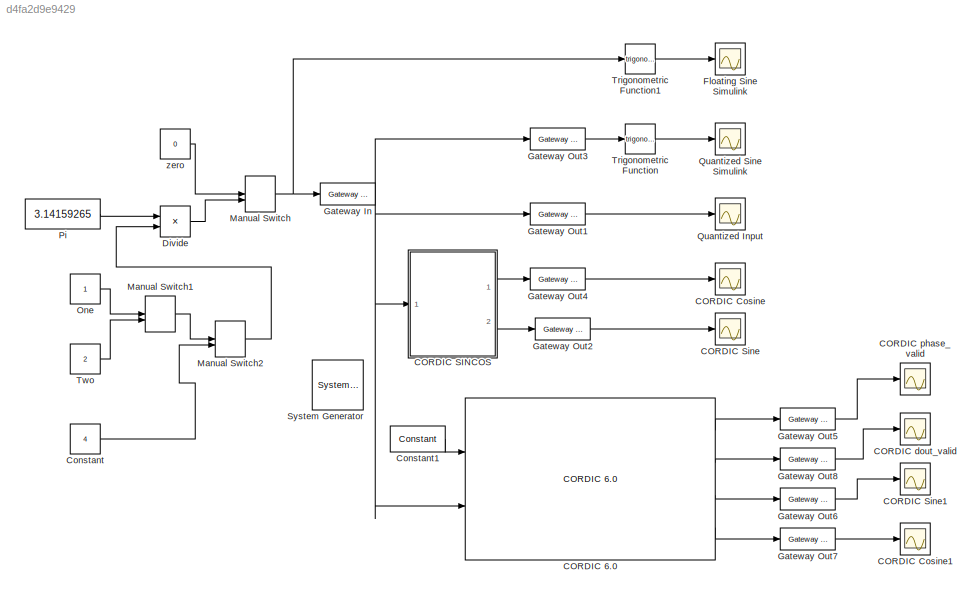
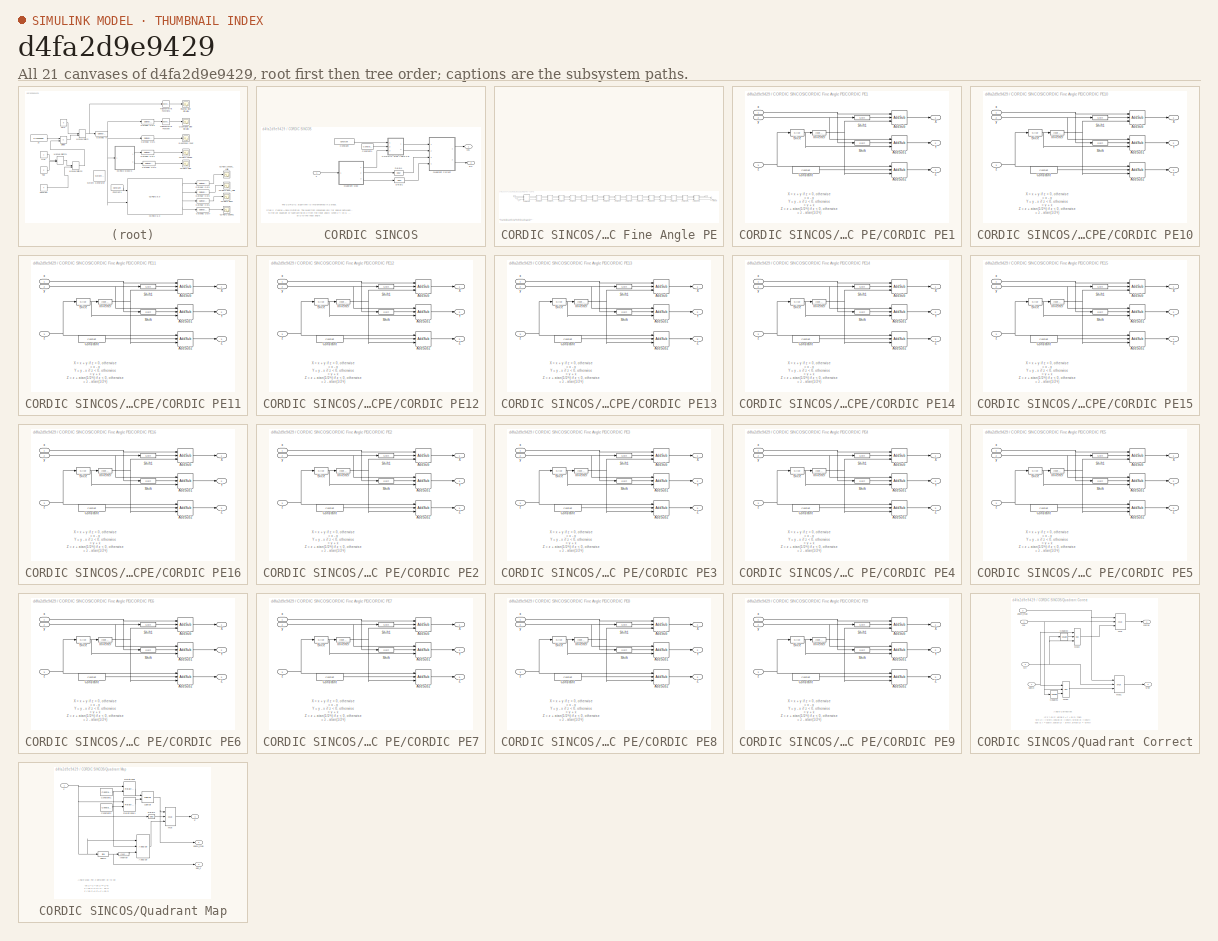
[diagram: thumbnail index - all 21 canvases of the model, root first then tree order]
MODEL slx_d4fa2d9e9429
KIND model
CONFIG AbsTol = auto
CONFIG EnableMultiTasking = on
CONFIG FixedStep = auto
CONFIG MaxStep = auto
CONFIG MinStep = auto
CONFIG RelTol = 1e-3
CONFIG SampleTimeConstraint = Unconstrained
CONFIG SolverName = ode45
CONFIG StartTime = 0.0
CONFIG StopTime = 30
BLOCK [Reference]  System Generator  REF=xbsIndex_r4/ System Generator
  AttributesFormatString = System\nGenerator
  Ports = []
  SourceBlock = xbsIndex_r4/ System Generator
  SourceType = Xilinx System Generator Block
  Tag = genX
  UserDataPersistent = on
BLOCK [Reference] CORDIC 6.0  REF=hdlDSPIP/CORDIC 6.0 
  Ports = [2, 4]
  SourceBlock = hdlDSPIP/CORDIC 6.0
  SourceType = CORDIC 6.0 Block
BLOCK [Scope] CORDIC Cosine
  Floating = off
  NumInputPorts = 1
  Ports = [1]
  ScopeSpecificationString = Simulink.scopes.TimeScopeBlockCfg('CurrentConfiguration', extmgr.ConfigurationSet(extmgr.Configuration('Core','General UI',true),extmgr.Configuration('Core','Source UI',true),extmgr.Configuration('Sources','WiredSimulink',true,'DataLoggingVariableName','ScopeData4','DataLoggingSaveFormat','StructureWithTime','DataLoggingLimitDataPoints',true,'DataLoggingDecimation','1','DataLoggingDecimateData',tr...<+1713ch>
BLOCK [Scope] CORDIC Cosine1
  Floating = off
  NumInputPorts = 1
  Ports = [1]
  ScopeSpecificationString = Simulink.scopes.TimeScopeBlockCfg('CurrentConfiguration', extmgr.ConfigurationSet(extmgr.Configuration('Core','General UI',true),extmgr.Configuration('Core','Source UI',true),extmgr.Configuration('Sources','WiredSimulink',true,'DataLoggingVariableName','ScopeData1','DataLoggingSaveFormat','StructureWithTime','DataLoggingLimitDataPoints',true,'DataLoggingDecimation','1','DataLoggingDecimateData',tr...<+1738ch>
BLOCK [SubSystem] CORDIC SINCOS
  CopyFcn = set_param(gcb, 'MaskSelfModifiable', 'on', 'LinkStatus', 'none');
  Ports = [1, 2]
  RequestExecContextInheritance = off
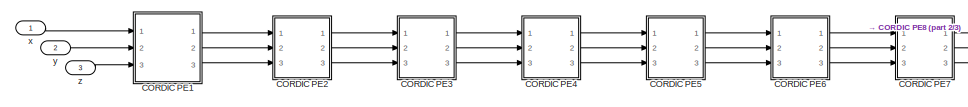
[diagram: CORDIC SINCOS/CORDIC Fine Angle PE - part 1/3, top left region]
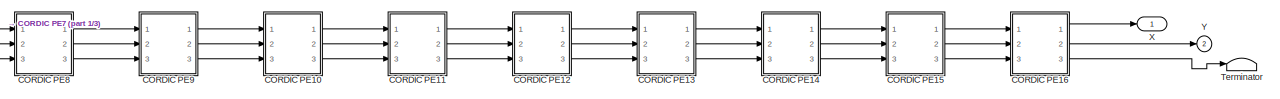
[diagram: CORDIC SINCOS/CORDIC Fine Angle PE - part 2/3, top right region]
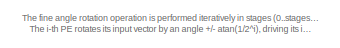
[diagram: CORDIC SINCOS/CORDIC Fine Angle PE - part 3/3, bottom left region]
BLOCK [SubSystem] CORDIC SINCOS/CORDIC Fine Angle PE
  Ports = [3, 2]
  RequestExecContextInheritance = off
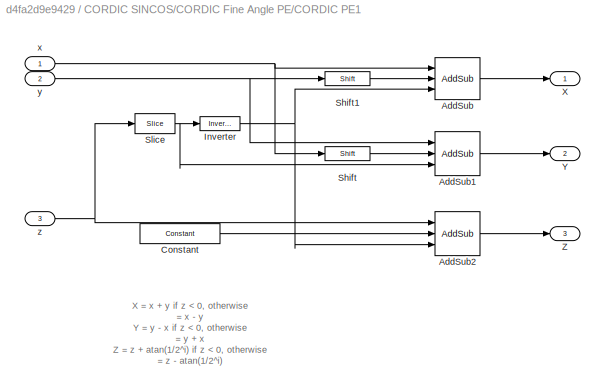
BLOCK [SubSystem] CORDIC SINCOS/CORDIC Fine Angle PE/CORDIC PE1
  Ports = [3, 3]
  RequestExecContextInheritance = off
BLOCK [Reference] CORDIC SINCOS/CORDIC Fine Angle PE/CORDIC PE1/AddSub  REF=hdlBasic/AddSub
  Ports = [3, 1]
  SourceBlock = hdlBasic/AddSub
  SourceType = Adder/Subtracter Block
BLOCK [Reference] CORDIC SINCOS/CORDIC Fine Angle PE/CORDIC PE1/AddSub1  REF=hdlBasic/AddSub
  Ports = [3, 1]
  SourceBlock = hdlBasic/AddSub
  SourceType = Adder/Subtracter Block
BLOCK [Reference] CORDIC SINCOS/CORDIC Fine Angle PE/CORDIC PE1/AddSub2  REF=hdlBasic/AddSub
  Ports = [3, 1]
  SourceBlock = hdlBasic/AddSub
  SourceType = Adder/Subtracter Block
BLOCK [Reference] CORDIC SINCOS/CORDIC Fine Angle PE/CORDIC PE1/Constant  REF=hdlBasic/Constant
  Ports = [0, 1]
  SourceBlock = hdlBasic/Constant
  SourceType = Constant Block Block
BLOCK [Reference] CORDIC SINCOS/CORDIC Fine Angle PE/CORDIC PE1/Inverter  REF=hdlBasic/Inverter
  Ports = [1, 1]
  SourceBlock = hdlBasic/Inverter
  SourceType = Inverter Block
BLOCK [Reference] CORDIC SINCOS/CORDIC Fine Angle PE/CORDIC PE1/Shift  REF=hdlBasic/Shift
  Ports = [1, 1]
  SourceBlock = hdlBasic/Shift
  SourceType = Binary Shift Operator Block
BLOCK [Reference] CORDIC SINCOS/CORDIC Fine Angle PE/CORDIC PE1/Shift1  REF=hdlBasic/Shift
  Ports = [1, 1]
  SourceBlock = hdlBasic/Shift
  SourceType = Binary Shift Operator Block
BLOCK [Reference] CORDIC SINCOS/CORDIC Fine Angle PE/CORDIC PE1/Slice  REF=hdlBasic/Slice
  Ports = [1, 1]
  SourceBlock = hdlBasic/Slice
  SourceType = Bit Slice Extractor Block
BLOCK [Outport] CORDIC SINCOS/CORDIC Fine Angle PE/CORDIC PE1/X
  VectorParamsAs1DForOutWhenUnconnected = off
BLOCK [Outport] CORDIC SINCOS/CORDIC Fine Angle PE/CORDIC PE1/Y
  Port = 2
  VectorParamsAs1DForOutWhenUnconnected = off
BLOCK [Outport] CORDIC SINCOS/CORDIC Fine Angle PE/CORDIC PE1/Z
  Port = 3
  VectorParamsAs1DForOutWhenUnconnected = off
BLOCK [Inport] CORDIC SINCOS/CORDIC Fine Angle PE/CORDIC PE1/x
  NameLocation = top
BLOCK [Inport] CORDIC SINCOS/CORDIC Fine Angle PE/CORDIC PE1/y
  Port = 2
BLOCK [Inport] CORDIC SINCOS/CORDIC Fine Angle PE/CORDIC PE1/z
  Port = 3
BLOCK [SubSystem] CORDIC SINCOS/CORDIC Fine Angle PE/CORDIC PE10
  Ports = [3, 3]
  RequestExecContextInheritance = off
BLOCK [Reference] CORDIC SINCOS/CORDIC Fine Angle PE/CORDIC PE10/AddSub  REF=hdlBasic/AddSub
  Ports = [3, 1]
  SourceBlock = hdlBasic/AddSub
  SourceType = Adder/Subtracter Block
BLOCK [Reference] CORDIC SINCOS/CORDIC Fine Angle PE/CORDIC PE10/AddSub1  REF=hdlBasic/AddSub
  Ports = [3, 1]
  SourceBlock = hdlBasic/AddSub
  SourceType = Adder/Subtracter Block
BLOCK [Reference] CORDIC SINCOS/CORDIC Fine Angle PE/CORDIC PE10/AddSub2  REF=hdlBasic/AddSub
  Ports = [3, 1]
  SourceBlock = hdlBasic/AddSub
  SourceType = Adder/Subtracter Block
BLOCK [Reference] CORDIC SINCOS/CORDIC Fine Angle PE/CORDIC PE10/Constant  REF=hdlBasic/Constant
  Ports = [0, 1]
  SourceBlock = hdlBasic/Constant
  SourceType = Constant Block Block
BLOCK [Reference] CORDIC SINCOS/CORDIC Fine Angle PE/CORDIC PE10/Inverter  REF=hdlBasic/Inverter
  Ports = [1, 1]
  SourceBlock = hdlBasic/Inverter
  SourceType = Inverter Block
BLOCK [Reference] CORDIC SINCOS/CORDIC Fine Angle PE/CORDIC PE10/Shift  REF=hdlBasic/Shift
  Ports = [1, 1]
  SourceBlock = hdlBasic/Shift
  SourceType = Binary Shift Operator Block
BLOCK [Reference] CORDIC SINCOS/CORDIC Fine Angle PE/CORDIC PE10/Shift1  REF=hdlBasic/Shift
  Ports = [1, 1]
  SourceBlock = hdlBasic/Shift
  SourceType = Binary Shift Operator Block
BLOCK [Reference] CORDIC SINCOS/CORDIC Fine Angle PE/CORDIC PE10/Slice  REF=hdlBasic/Slice
  Ports = [1, 1]
  SourceBlock = hdlBasic/Slice
  SourceType = Bit Slice Extractor Block
BLOCK [Outport] CORDIC SINCOS/CORDIC Fine Angle PE/CORDIC PE10/X
  VectorParamsAs1DForOutWhenUnconnected = off
BLOCK [Outport] CORDIC SINCOS/CORDIC Fine Angle PE/CORDIC PE10/Y
  Port = 2
  VectorParamsAs1DForOutWhenUnconnected = off
BLOCK [Outport] CORDIC SINCOS/CORDIC Fine Angle PE/CORDIC PE10/Z
  Port = 3
  VectorParamsAs1DForOutWhenUnconnected = off
BLOCK [Inport] CORDIC SINCOS/CORDIC Fine Angle PE/CORDIC PE10/x
  NameLocation = top
BLOCK [Inport] CORDIC SINCOS/CORDIC Fine Angle PE/CORDIC PE10/y
  Port = 2
BLOCK [Inport] CORDIC SINCOS/CORDIC Fine Angle PE/CORDIC PE10/z
  Port = 3
BLOCK [SubSystem] CORDIC SINCOS/CORDIC Fine Angle PE/CORDIC PE11
  Ports = [3, 3]
  RequestExecContextInheritance = off
BLOCK [Reference] CORDIC SINCOS/CORDIC Fine Angle PE/CORDIC PE11/AddSub  REF=hdlBasic/AddSub
  Ports = [3, 1]
  SourceBlock = hdlBasic/AddSub
  SourceType = Adder/Subtracter Block
BLOCK [Reference] CORDIC SINCOS/CORDIC Fine Angle PE/CORDIC PE11/AddSub1  REF=hdlBasic/AddSub
  Ports = [3, 1]
  SourceBlock = hdlBasic/AddSub
  SourceType = Adder/Subtracter Block
BLOCK [Reference] CORDIC SINCOS/CORDIC Fine Angle PE/CORDIC PE11/AddSub2  REF=hdlBasic/AddSub
  Ports = [3, 1]
  SourceBlock = hdlBasic/AddSub
  SourceType = Adder/Subtracter Block
BLOCK [Reference] CORDIC SINCOS/CORDIC Fine Angle PE/CORDIC PE11/Constant  REF=hdlBasic/Constant
  Ports = [0, 1]
  SourceBlock = hdlBasic/Constant
  SourceType = Constant Block Block
BLOCK [Reference] CORDIC SINCOS/CORDIC Fine Angle PE/CORDIC PE11/Inverter  REF=hdlBasic/Inverter
  Ports = [1, 1]
  SourceBlock = hdlBasic/Inverter
  SourceType = Inverter Block
BLOCK [Reference] CORDIC SINCOS/CORDIC Fine Angle PE/CORDIC PE11/Shift  REF=hdlBasic/Shift
  Ports = [1, 1]
  SourceBlock = hdlBasic/Shift
  SourceType = Binary Shift Operator Block
BLOCK [Reference] CORDIC SINCOS/CORDIC Fine Angle PE/CORDIC PE11/Shift1  REF=hdlBasic/Shift
  Ports = [1, 1]
  SourceBlock = hdlBasic/Shift
  SourceType = Binary Shift Operator Block
BLOCK [Reference] CORDIC SINCOS/CORDIC Fine Angle PE/CORDIC PE11/Slice  REF=hdlBasic/Slice
  Ports = [1, 1]
  SourceBlock = hdlBasic/Slice
  SourceType = Bit Slice Extractor Block
BLOCK [Outport] CORDIC SINCOS/CORDIC Fine Angle PE/CORDIC PE11/X
  VectorParamsAs1DForOutWhenUnconnected = off
BLOCK [Outport] CORDIC SINCOS/CORDIC Fine Angle PE/CORDIC PE11/Y
  Port = 2
  VectorParamsAs1DForOutWhenUnconnected = off
BLOCK [Outport] CORDIC SINCOS/CORDIC Fine Angle PE/CORDIC PE11/Z
  Port = 3
  VectorParamsAs1DForOutWhenUnconnected = off
BLOCK [Inport] CORDIC SINCOS/CORDIC Fine Angle PE/CORDIC PE11/x
  NameLocation = top
BLOCK [Inport] CORDIC SINCOS/CORDIC Fine Angle PE/CORDIC PE11/y
  Port = 2
BLOCK [Inport] CORDIC SINCOS/CORDIC Fine Angle PE/CORDIC PE11/z
  Port = 3
BLOCK [SubSystem] CORDIC SINCOS/CORDIC Fine Angle PE/CORDIC PE12
  Ports = [3, 3]
  RequestExecContextInheritance = off
BLOCK [Reference] CORDIC SINCOS/CORDIC Fine Angle PE/CORDIC PE12/AddSub  REF=hdlBasic/AddSub
  Ports = [3, 1]
  SourceBlock = hdlBasic/AddSub
  SourceType = Adder/Subtracter Block
BLOCK [Reference] CORDIC SINCOS/CORDIC Fine Angle PE/CORDIC PE12/AddSub1  REF=hdlBasic/AddSub
  Ports = [3, 1]
  SourceBlock = hdlBasic/AddSub
  SourceType = Adder/Subtracter Block
BLOCK [Reference] CORDIC SINCOS/CORDIC Fine Angle PE/CORDIC PE12/AddSub2  REF=hdlBasic/AddSub
  Ports = [3, 1]
  SourceBlock = hdlBasic/AddSub
  SourceType = Adder/Subtracter Block
BLOCK [Reference] CORDIC SINCOS/CORDIC Fine Angle PE/CORDIC PE12/Constant  REF=hdlBasic/Constant
  Ports = [0, 1]
  SourceBlock = hdlBasic/Constant
  SourceType = Constant Block Block
BLOCK [Reference] CORDIC SINCOS/CORDIC Fine Angle PE/CORDIC PE12/Inverter  REF=hdlBasic/Inverter
  Ports = [1, 1]
  SourceBlock = hdlBasic/Inverter
  SourceType = Inverter Block
BLOCK [Reference] CORDIC SINCOS/CORDIC Fine Angle PE/CORDIC PE12/Shift  REF=hdlBasic/Shift
  Ports = [1, 1]
  SourceBlock = hdlBasic/Shift
  SourceType = Binary Shift Operator Block
BLOCK [Reference] CORDIC SINCOS/CORDIC Fine Angle PE/CORDIC PE12/Shift1  REF=hdlBasic/Shift
  Ports = [1, 1]
  SourceBlock = hdlBasic/Shift
  SourceType = Binary Shift Operator Block
BLOCK [Reference] CORDIC SINCOS/CORDIC Fine Angle PE/CORDIC PE12/Slice  REF=hdlBasic/Slice
  Ports = [1, 1]
  SourceBlock = hdlBasic/Slice
  SourceType = Bit Slice Extractor Block
BLOCK [Outport] CORDIC SINCOS/CORDIC Fine Angle PE/CORDIC PE12/X
  VectorParamsAs1DForOutWhenUnconnected = off
BLOCK [Outport] CORDIC SINCOS/CORDIC Fine Angle PE/CORDIC PE12/Y
  Port = 2
  VectorParamsAs1DForOutWhenUnconnected = off
BLOCK [Outport] CORDIC SINCOS/CORDIC Fine Angle PE/CORDIC PE12/Z
  Port = 3
  VectorParamsAs1DForOutWhenUnconnected = off
BLOCK [Inport] CORDIC SINCOS/CORDIC Fine Angle PE/CORDIC PE12/x
  NameLocation = top
BLOCK [Inport] CORDIC SINCOS/CORDIC Fine Angle PE/CORDIC PE12/y
  Port = 2
BLOCK [Inport] CORDIC SINCOS/CORDIC Fine Angle PE/CORDIC PE12/z
  Port = 3
BLOCK [SubSystem] CORDIC SINCOS/CORDIC Fine Angle PE/CORDIC PE13
  Ports = [3, 3]
  RequestExecContextInheritance = off
BLOCK [Reference] CORDIC SINCOS/CORDIC Fine Angle PE/CORDIC PE13/AddSub  REF=hdlBasic/AddSub
  Ports = [3, 1]
  SourceBlock = hdlBasic/AddSub
  SourceType = Adder/Subtracter Block
BLOCK [Reference] CORDIC SINCOS/CORDIC Fine Angle PE/CORDIC PE13/AddSub1  REF=hdlBasic/AddSub
  Ports = [3, 1]
  SourceBlock = hdlBasic/AddSub
  SourceType = Adder/Subtracter Block
BLOCK [Reference] CORDIC SINCOS/CORDIC Fine Angle PE/CORDIC PE13/AddSub2  REF=hdlBasic/AddSub
  Ports = [3, 1]
  SourceBlock = hdlBasic/AddSub
  SourceType = Adder/Subtracter Block
BLOCK [Reference] CORDIC SINCOS/CORDIC Fine Angle PE/CORDIC PE13/Constant  REF=hdlBasic/Constant
  Ports = [0, 1]
  SourceBlock = hdlBasic/Constant
  SourceType = Constant Block Block
BLOCK [Reference] CORDIC SINCOS/CORDIC Fine Angle PE/CORDIC PE13/Inverter  REF=hdlBasic/Inverter
  Ports = [1, 1]
  SourceBlock = hdlBasic/Inverter
  SourceType = Inverter Block
BLOCK [Reference] CORDIC SINCOS/CORDIC Fine Angle PE/CORDIC PE13/Shift  REF=hdlBasic/Shift
  Ports = [1, 1]
  SourceBlock = hdlBasic/Shift
  SourceType = Binary Shift Operator Block
BLOCK [Reference] CORDIC SINCOS/CORDIC Fine Angle PE/CORDIC PE13/Shift1  REF=hdlBasic/Shift
  Ports = [1, 1]
  SourceBlock = hdlBasic/Shift
  SourceType = Binary Shift Operator Block
BLOCK [Reference] CORDIC SINCOS/CORDIC Fine Angle PE/CORDIC PE13/Slice  REF=hdlBasic/Slice
  Ports = [1, 1]
  SourceBlock = hdlBasic/Slice
  SourceType = Bit Slice Extractor Block
BLOCK [Outport] CORDIC SINCOS/CORDIC Fine Angle PE/CORDIC PE13/X
  VectorParamsAs1DForOutWhenUnconnected = off
BLOCK [Outport] CORDIC SINCOS/CORDIC Fine Angle PE/CORDIC PE13/Y
  Port = 2
  VectorParamsAs1DForOutWhenUnconnected = off
BLOCK [Outport] CORDIC SINCOS/CORDIC Fine Angle PE/CORDIC PE13/Z
  Port = 3
  VectorParamsAs1DForOutWhenUnconnected = off
BLOCK [Inport] CORDIC SINCOS/CORDIC Fine Angle PE/CORDIC PE13/x
  NameLocation = top
BLOCK [Inport] CORDIC SINCOS/CORDIC Fine Angle PE/CORDIC PE13/y
  Port = 2
BLOCK [Inport] CORDIC SINCOS/CORDIC Fine Angle PE/CORDIC PE13/z
  Port = 3
BLOCK [SubSystem] CORDIC SINCOS/CORDIC Fine Angle PE/CORDIC PE14
  Ports = [3, 3]
  RequestExecContextInheritance = off
BLOCK [Reference] CORDIC SINCOS/CORDIC Fine Angle PE/CORDIC PE14/AddSub  REF=hdlBasic/AddSub
  Ports = [3, 1]
  SourceBlock = hdlBasic/AddSub
  SourceType = Adder/Subtracter Block
BLOCK [Reference] CORDIC SINCOS/CORDIC Fine Angle PE/CORDIC PE14/AddSub1  REF=hdlBasic/AddSub
  Ports = [3, 1]
  SourceBlock = hdlBasic/AddSub
  SourceType = Adder/Subtracter Block
BLOCK [Reference] CORDIC SINCOS/CORDIC Fine Angle PE/CORDIC PE14/AddSub2  REF=hdlBasic/AddSub
  Ports = [3, 1]
  SourceBlock = hdlBasic/AddSub
  SourceType = Adder/Subtracter Block
BLOCK [Reference] CORDIC SINCOS/CORDIC Fine Angle PE/CORDIC PE14/Constant  REF=hdlBasic/Constant
  Ports = [0, 1]
  SourceBlock = hdlBasic/Constant
  SourceType = Constant Block Block
BLOCK [Reference] CORDIC SINCOS/CORDIC Fine Angle PE/CORDIC PE14/Inverter  REF=hdlBasic/Inverter
  Ports = [1, 1]
  SourceBlock = hdlBasic/Inverter
  SourceType = Inverter Block
BLOCK [Reference] CORDIC SINCOS/CORDIC Fine Angle PE/CORDIC PE14/Shift  REF=hdlBasic/Shift
  Ports = [1, 1]
  SourceBlock = hdlBasic/Shift
  SourceType = Binary Shift Operator Block
BLOCK [Reference] CORDIC SINCOS/CORDIC Fine Angle PE/CORDIC PE14/Shift1  REF=hdlBasic/Shift
  Ports = [1, 1]
  SourceBlock = hdlBasic/Shift
  SourceType = Binary Shift Operator Block
BLOCK [Reference] CORDIC SINCOS/CORDIC Fine Angle PE/CORDIC PE14/Slice  REF=hdlBasic/Slice
  Ports = [1, 1]
  SourceBlock = hdlBasic/Slice
  SourceType = Bit Slice Extractor Block
BLOCK [Outport] CORDIC SINCOS/CORDIC Fine Angle PE/CORDIC PE14/X
  VectorParamsAs1DForOutWhenUnconnected = off
BLOCK [Outport] CORDIC SINCOS/CORDIC Fine Angle PE/CORDIC PE14/Y
  Port = 2
  VectorParamsAs1DForOutWhenUnconnected = off
BLOCK [Outport] CORDIC SINCOS/CORDIC Fine Angle PE/CORDIC PE14/Z
  Port = 3
  VectorParamsAs1DForOutWhenUnconnected = off
BLOCK [Inport] CORDIC SINCOS/CORDIC Fine Angle PE/CORDIC PE14/x
  NameLocation = top
BLOCK [Inport] CORDIC SINCOS/CORDIC Fine Angle PE/CORDIC PE14/y
  Port = 2
BLOCK [Inport] CORDIC SINCOS/CORDIC Fine Angle PE/CORDIC PE14/z
  Port = 3
BLOCK [SubSystem] CORDIC SINCOS/CORDIC Fine Angle PE/CORDIC PE15
  Ports = [3, 3]
  RequestExecContextInheritance = off
BLOCK [Reference] CORDIC SINCOS/CORDIC Fine Angle PE/CORDIC PE15/AddSub  REF=hdlBasic/AddSub
  Ports = [3, 1]
  SourceBlock = hdlBasic/AddSub
  SourceType = Adder/Subtracter Block
BLOCK [Reference] CORDIC SINCOS/CORDIC Fine Angle PE/CORDIC PE15/AddSub1  REF=hdlBasic/AddSub
  Ports = [3, 1]
  SourceBlock = hdlBasic/AddSub
  SourceType = Adder/Subtracter Block
BLOCK [Reference] CORDIC SINCOS/CORDIC Fine Angle PE/CORDIC PE15/AddSub2  REF=hdlBasic/AddSub
  Ports = [3, 1]
  SourceBlock = hdlBasic/AddSub
  SourceType = Adder/Subtracter Block
BLOCK [Reference] CORDIC SINCOS/CORDIC Fine Angle PE/CORDIC PE15/Constant  REF=hdlBasic/Constant
  Ports = [0, 1]
  SourceBlock = hdlBasic/Constant
  SourceType = Constant Block Block
BLOCK [Reference] CORDIC SINCOS/CORDIC Fine Angle PE/CORDIC PE15/Inverter  REF=hdlBasic/Inverter
  Ports = [1, 1]
  SourceBlock = hdlBasic/Inverter
  SourceType = Inverter Block
BLOCK [Reference] CORDIC SINCOS/CORDIC Fine Angle PE/CORDIC PE15/Shift  REF=hdlBasic/Shift
  Ports = [1, 1]
  SourceBlock = hdlBasic/Shift
  SourceType = Binary Shift Operator Block
BLOCK [Reference] CORDIC SINCOS/CORDIC Fine Angle PE/CORDIC PE15/Shift1  REF=hdlBasic/Shift
  Ports = [1, 1]
  SourceBlock = hdlBasic/Shift
  SourceType = Binary Shift Operator Block
BLOCK [Reference] CORDIC SINCOS/CORDIC Fine Angle PE/CORDIC PE15/Slice  REF=hdlBasic/Slice
  Ports = [1, 1]
  SourceBlock = hdlBasic/Slice
  SourceType = Bit Slice Extractor Block
BLOCK [Outport] CORDIC SINCOS/CORDIC Fine Angle PE/CORDIC PE15/X
  VectorParamsAs1DForOutWhenUnconnected = off
BLOCK [Outport] CORDIC SINCOS/CORDIC Fine Angle PE/CORDIC PE15/Y
  Port = 2
  VectorParamsAs1DForOutWhenUnconnected = off
BLOCK [Outport] CORDIC SINCOS/CORDIC Fine Angle PE/CORDIC PE15/Z
  Port = 3
  VectorParamsAs1DForOutWhenUnconnected = off
BLOCK [Inport] CORDIC SINCOS/CORDIC Fine Angle PE/CORDIC PE15/x
  NameLocation = top
BLOCK [Inport] CORDIC SINCOS/CORDIC Fine Angle PE/CORDIC PE15/y
  Port = 2
BLOCK [Inport] CORDIC SINCOS/CORDIC Fine Angle PE/CORDIC PE15/z
  Port = 3
BLOCK [SubSystem] CORDIC SINCOS/CORDIC Fine Angle PE/CORDIC PE16
  Ports = [3, 3]
  RequestExecContextInheritance = off
BLOCK [Reference] CORDIC SINCOS/CORDIC Fine Angle PE/CORDIC PE16/AddSub  REF=hdlBasic/AddSub
  Ports = [3, 1]
  SourceBlock = hdlBasic/AddSub
  SourceType = Adder/Subtracter Block
BLOCK [Reference] CORDIC SINCOS/CORDIC Fine Angle PE/CORDIC PE16/AddSub1  REF=hdlBasic/AddSub
  Ports = [3, 1]
  SourceBlock = hdlBasic/AddSub
  SourceType = Adder/Subtracter Block
BLOCK [Reference] CORDIC SINCOS/CORDIC Fine Angle PE/CORDIC PE16/AddSub2  REF=hdlBasic/AddSub
  Ports = [3, 1]
  SourceBlock = hdlBasic/AddSub
  SourceType = Adder/Subtracter Block
BLOCK [Reference] CORDIC SINCOS/CORDIC Fine Angle PE/CORDIC PE16/Constant  REF=hdlBasic/Constant
  Ports = [0, 1]
  SourceBlock = hdlBasic/Constant
  SourceType = Constant Block Block
BLOCK [Reference] CORDIC SINCOS/CORDIC Fine Angle PE/CORDIC PE16/Inverter  REF=hdlBasic/Inverter
  Ports = [1, 1]
  SourceBlock = hdlBasic/Inverter
  SourceType = Inverter Block
BLOCK [Reference] CORDIC SINCOS/CORDIC Fine Angle PE/CORDIC PE16/Shift  REF=hdlBasic/Shift
  Ports = [1, 1]
  SourceBlock = hdlBasic/Shift
  SourceType = Binary Shift Operator Block
BLOCK [Reference] CORDIC SINCOS/CORDIC Fine Angle PE/CORDIC PE16/Shift1  REF=hdlBasic/Shift
  Ports = [1, 1]
  SourceBlock = hdlBasic/Shift
  SourceType = Binary Shift Operator Block
BLOCK [Reference] CORDIC SINCOS/CORDIC Fine Angle PE/CORDIC PE16/Slice  REF=hdlBasic/Slice
  Ports = [1, 1]
  SourceBlock = hdlBasic/Slice
  SourceType = Bit Slice Extractor Block
BLOCK [Outport] CORDIC SINCOS/CORDIC Fine Angle PE/CORDIC PE16/X
  VectorParamsAs1DForOutWhenUnconnected = off
BLOCK [Outport] CORDIC SINCOS/CORDIC Fine Angle PE/CORDIC PE16/Y
  Port = 2
  VectorParamsAs1DForOutWhenUnconnected = off
BLOCK [Outport] CORDIC SINCOS/CORDIC Fine Angle PE/CORDIC PE16/Z
  Port = 3
  VectorParamsAs1DForOutWhenUnconnected = off
BLOCK [Inport] CORDIC SINCOS/CORDIC Fine Angle PE/CORDIC PE16/x
  NameLocation = top
BLOCK [Inport] CORDIC SINCOS/CORDIC Fine Angle PE/CORDIC PE16/y
  Port = 2
BLOCK [Inport] CORDIC SINCOS/CORDIC Fine Angle PE/CORDIC PE16/z
  Port = 3
BLOCK [SubSystem] CORDIC SINCOS/CORDIC Fine Angle PE/CORDIC PE2
  Ports = [3, 3]
  RequestExecContextInheritance = off
BLOCK [Reference] CORDIC SINCOS/CORDIC Fine Angle PE/CORDIC PE2/AddSub  REF=hdlBasic/AddSub
  Ports = [3, 1]
  SourceBlock = hdlBasic/AddSub
  SourceType = Adder/Subtracter Block
BLOCK [Reference] CORDIC SINCOS/CORDIC Fine Angle PE/CORDIC PE2/AddSub1  REF=hdlBasic/AddSub
  Ports = [3, 1]
  SourceBlock = hdlBasic/AddSub
  SourceType = Adder/Subtracter Block
BLOCK [Reference] CORDIC SINCOS/CORDIC Fine Angle PE/CORDIC PE2/AddSub2  REF=hdlBasic/AddSub
  Ports = [3, 1]
  SourceBlock = hdlBasic/AddSub
  SourceType = Adder/Subtracter Block
BLOCK [Reference] CORDIC SINCOS/CORDIC Fine Angle PE/CORDIC PE2/Constant  REF=hdlBasic/Constant
  Ports = [0, 1]
  SourceBlock = hdlBasic/Constant
  SourceType = Constant Block Block
BLOCK [Reference] CORDIC SINCOS/CORDIC Fine Angle PE/CORDIC PE2/Inverter  REF=hdlBasic/Inverter
  Ports = [1, 1]
  SourceBlock = hdlBasic/Inverter
  SourceType = Inverter Block
BLOCK [Reference] CORDIC SINCOS/CORDIC Fine Angle PE/CORDIC PE2/Shift  REF=hdlBasic/Shift
  Ports = [1, 1]
  SourceBlock = hdlBasic/Shift
  SourceType = Binary Shift Operator Block
BLOCK [Reference] CORDIC SINCOS/CORDIC Fine Angle PE/CORDIC PE2/Shift1  REF=hdlBasic/Shift
  Ports = [1, 1]
  SourceBlock = hdlBasic/Shift
  SourceType = Binary Shift Operator Block
BLOCK [Reference] CORDIC SINCOS/CORDIC Fine Angle PE/CORDIC PE2/Slice  REF=hdlBasic/Slice
  Ports = [1, 1]
  SourceBlock = hdlBasic/Slice
  SourceType = Bit Slice Extractor Block
BLOCK [Outport] CORDIC SINCOS/CORDIC Fine Angle PE/CORDIC PE2/X
  VectorParamsAs1DForOutWhenUnconnected = off
BLOCK [Outport] CORDIC SINCOS/CORDIC Fine Angle PE/CORDIC PE2/Y
  Port = 2
  VectorParamsAs1DForOutWhenUnconnected = off
BLOCK [Outport] CORDIC SINCOS/CORDIC Fine Angle PE/CORDIC PE2/Z
  Port = 3
  VectorParamsAs1DForOutWhenUnconnected = off
BLOCK [Inport] CORDIC SINCOS/CORDIC Fine Angle PE/CORDIC PE2/x
  NameLocation = top
BLOCK [Inport] CORDIC SINCOS/CORDIC Fine Angle PE/CORDIC PE2/y
  Port = 2
BLOCK [Inport] CORDIC SINCOS/CORDIC Fine Angle PE/CORDIC PE2/z
  Port = 3
BLOCK [SubSystem] CORDIC SINCOS/CORDIC Fine Angle PE/CORDIC PE3
  Ports = [3, 3]
  RequestExecContextInheritance = off
BLOCK [Reference] CORDIC SINCOS/CORDIC Fine Angle PE/CORDIC PE3/AddSub  REF=hdlBasic/AddSub
  Ports = [3, 1]
  SourceBlock = hdlBasic/AddSub
  SourceType = Adder/Subtracter Block
BLOCK [Reference] CORDIC SINCOS/CORDIC Fine Angle PE/CORDIC PE3/AddSub1  REF=hdlBasic/AddSub
  Ports = [3, 1]
  SourceBlock = hdlBasic/AddSub
  SourceType = Adder/Subtracter Block
BLOCK [Reference] CORDIC SINCOS/CORDIC Fine Angle PE/CORDIC PE3/AddSub2  REF=hdlBasic/AddSub
  Ports = [3, 1]
  SourceBlock = hdlBasic/AddSub
  SourceType = Adder/Subtracter Block
BLOCK [Reference] CORDIC SINCOS/CORDIC Fine Angle PE/CORDIC PE3/Constant  REF=hdlBasic/Constant
  Ports = [0, 1]
  SourceBlock = hdlBasic/Constant
  SourceType = Constant Block Block
BLOCK [Reference] CORDIC SINCOS/CORDIC Fine Angle PE/CORDIC PE3/Inverter  REF=hdlBasic/Inverter
  Ports = [1, 1]
  SourceBlock = hdlBasic/Inverter
  SourceType = Inverter Block
BLOCK [Reference] CORDIC SINCOS/CORDIC Fine Angle PE/CORDIC PE3/Shift  REF=hdlBasic/Shift
  Ports = [1, 1]
  SourceBlock = hdlBasic/Shift
  SourceType = Binary Shift Operator Block
BLOCK [Reference] CORDIC SINCOS/CORDIC Fine Angle PE/CORDIC PE3/Shift1  REF=hdlBasic/Shift
  Ports = [1, 1]
  SourceBlock = hdlBasic/Shift
  SourceType = Binary Shift Operator Block
BLOCK [Reference] CORDIC SINCOS/CORDIC Fine Angle PE/CORDIC PE3/Slice  REF=hdlBasic/Slice
  Ports = [1, 1]
  SourceBlock = hdlBasic/Slice
  SourceType = Bit Slice Extractor Block
BLOCK [Outport] CORDIC SINCOS/CORDIC Fine Angle PE/CORDIC PE3/X
  VectorParamsAs1DForOutWhenUnconnected = off
BLOCK [Outport] CORDIC SINCOS/CORDIC Fine Angle PE/CORDIC PE3/Y
  Port = 2
  VectorParamsAs1DForOutWhenUnconnected = off
BLOCK [Outport] CORDIC SINCOS/CORDIC Fine Angle PE/CORDIC PE3/Z
  Port = 3
  VectorParamsAs1DForOutWhenUnconnected = off
BLOCK [Inport] CORDIC SINCOS/CORDIC Fine Angle PE/CORDIC PE3/x
  NameLocation = top
BLOCK [Inport] CORDIC SINCOS/CORDIC Fine Angle PE/CORDIC PE3/y
  Port = 2
BLOCK [Inport] CORDIC SINCOS/CORDIC Fine Angle PE/CORDIC PE3/z
  Port = 3
BLOCK [SubSystem] CORDIC SINCOS/CORDIC Fine Angle PE/CORDIC PE4
  Ports = [3, 3]
  RequestExecContextInheritance = off
BLOCK [Reference] CORDIC SINCOS/CORDIC Fine Angle PE/CORDIC PE4/AddSub  REF=hdlBasic/AddSub
  Ports = [3, 1]
  SourceBlock = hdlBasic/AddSub
  SourceType = Adder/Subtracter Block
BLOCK [Reference] CORDIC SINCOS/CORDIC Fine Angle PE/CORDIC PE4/AddSub1  REF=hdlBasic/AddSub
  Ports = [3, 1]
  SourceBlock = hdlBasic/AddSub
  SourceType = Adder/Subtracter Block
BLOCK [Reference] CORDIC SINCOS/CORDIC Fine Angle PE/CORDIC PE4/AddSub2  REF=hdlBasic/AddSub
  Ports = [3, 1]
  SourceBlock = hdlBasic/AddSub
  SourceType = Adder/Subtracter Block
BLOCK [Reference] CORDIC SINCOS/CORDIC Fine Angle PE/CORDIC PE4/Constant  REF=hdlBasic/Constant
  Ports = [0, 1]
  SourceBlock = hdlBasic/Constant
  SourceType = Constant Block Block
BLOCK [Reference] CORDIC SINCOS/CORDIC Fine Angle PE/CORDIC PE4/Inverter  REF=hdlBasic/Inverter
  Ports = [1, 1]
  SourceBlock = hdlBasic/Inverter
  SourceType = Inverter Block
BLOCK [Reference] CORDIC SINCOS/CORDIC Fine Angle PE/CORDIC PE4/Shift  REF=hdlBasic/Shift
  Ports = [1, 1]
  SourceBlock = hdlBasic/Shift
  SourceType = Binary Shift Operator Block
BLOCK [Reference] CORDIC SINCOS/CORDIC Fine Angle PE/CORDIC PE4/Shift1  REF=hdlBasic/Shift
  Ports = [1, 1]
  SourceBlock = hdlBasic/Shift
  SourceType = Binary Shift Operator Block
BLOCK [Reference] CORDIC SINCOS/CORDIC Fine Angle PE/CORDIC PE4/Slice  REF=hdlBasic/Slice
  Ports = [1, 1]
  SourceBlock = hdlBasic/Slice
  SourceType = Bit Slice Extractor Block
BLOCK [Outport] CORDIC SINCOS/CORDIC Fine Angle PE/CORDIC PE4/X
  VectorParamsAs1DForOutWhenUnconnected = off
BLOCK [Outport] CORDIC SINCOS/CORDIC Fine Angle PE/CORDIC PE4/Y
  Port = 2
  VectorParamsAs1DForOutWhenUnconnected = off
BLOCK [Outport] CORDIC SINCOS/CORDIC Fine Angle PE/CORDIC PE4/Z
  Port = 3
  VectorParamsAs1DForOutWhenUnconnected = off
BLOCK [Inport] CORDIC SINCOS/CORDIC Fine Angle PE/CORDIC PE4/x
  NameLocation = top
BLOCK [Inport] CORDIC SINCOS/CORDIC Fine Angle PE/CORDIC PE4/y
  Port = 2
BLOCK [Inport] CORDIC SINCOS/CORDIC Fine Angle PE/CORDIC PE4/z
  Port = 3
BLOCK [SubSystem] CORDIC SINCOS/CORDIC Fine Angle PE/CORDIC PE5
  Ports = [3, 3]
  RequestExecContextInheritance = off
BLOCK [Reference] CORDIC SINCOS/CORDIC Fine Angle PE/CORDIC PE5/AddSub  REF=hdlBasic/AddSub
  Ports = [3, 1]
  SourceBlock = hdlBasic/AddSub
  SourceType = Adder/Subtracter Block
BLOCK [Reference] CORDIC SINCOS/CORDIC Fine Angle PE/CORDIC PE5/AddSub1  REF=hdlBasic/AddSub
  Ports = [3, 1]
  SourceBlock = hdlBasic/AddSub
  SourceType = Adder/Subtracter Block
BLOCK [Reference] CORDIC SINCOS/CORDIC Fine Angle PE/CORDIC PE5/AddSub2  REF=hdlBasic/AddSub
  Ports = [3, 1]
  SourceBlock = hdlBasic/AddSub
  SourceType = Adder/Subtracter Block
BLOCK [Reference] CORDIC SINCOS/CORDIC Fine Angle PE/CORDIC PE5/Constant  REF=hdlBasic/Constant
  Ports = [0, 1]
  SourceBlock = hdlBasic/Constant
  SourceType = Constant Block Block
BLOCK [Reference] CORDIC SINCOS/CORDIC Fine Angle PE/CORDIC PE5/Inverter  REF=hdlBasic/Inverter
  Ports = [1, 1]
  SourceBlock = hdlBasic/Inverter
  SourceType = Inverter Block
BLOCK [Reference] CORDIC SINCOS/CORDIC Fine Angle PE/CORDIC PE5/Shift  REF=hdlBasic/Shift
  Ports = [1, 1]
  SourceBlock = hdlBasic/Shift
  SourceType = Binary Shift Operator Block
BLOCK [Reference] CORDIC SINCOS/CORDIC Fine Angle PE/CORDIC PE5/Shift1  REF=hdlBasic/Shift
  Ports = [1, 1]
  SourceBlock = hdlBasic/Shift
  SourceType = Binary Shift Operator Block
BLOCK [Reference] CORDIC SINCOS/CORDIC Fine Angle PE/CORDIC PE5/Slice  REF=hdlBasic/Slice
  Ports = [1, 1]
  SourceBlock = hdlBasic/Slice
  SourceType = Bit Slice Extractor Block
BLOCK [Outport] CORDIC SINCOS/CORDIC Fine Angle PE/CORDIC PE5/X
  VectorParamsAs1DForOutWhenUnconnected = off
BLOCK [Outport] CORDIC SINCOS/CORDIC Fine Angle PE/CORDIC PE5/Y
  Port = 2
  VectorParamsAs1DForOutWhenUnconnected = off
BLOCK [Outport] CORDIC SINCOS/CORDIC Fine Angle PE/CORDIC PE5/Z
  Port = 3
  VectorParamsAs1DForOutWhenUnconnected = off
BLOCK [Inport] CORDIC SINCOS/CORDIC Fine Angle PE/CORDIC PE5/x
  NameLocation = top
BLOCK [Inport] CORDIC SINCOS/CORDIC Fine Angle PE/CORDIC PE5/y
  Port = 2
BLOCK [Inport] CORDIC SINCOS/CORDIC Fine Angle PE/CORDIC PE5/z
  Port = 3
BLOCK [SubSystem] CORDIC SINCOS/CORDIC Fine Angle PE/CORDIC PE6
  Ports = [3, 3]
  RequestExecContextInheritance = off
BLOCK [Reference] CORDIC SINCOS/CORDIC Fine Angle PE/CORDIC PE6/AddSub  REF=hdlBasic/AddSub
  Ports = [3, 1]
  SourceBlock = hdlBasic/AddSub
  SourceType = Adder/Subtracter Block
BLOCK [Reference] CORDIC SINCOS/CORDIC Fine Angle PE/CORDIC PE6/AddSub1  REF=hdlBasic/AddSub
  Ports = [3, 1]
  SourceBlock = hdlBasic/AddSub
  SourceType = Adder/Subtracter Block
BLOCK [Reference] CORDIC SINCOS/CORDIC Fine Angle PE/CORDIC PE6/AddSub2  REF=hdlBasic/AddSub
  Ports = [3, 1]
  SourceBlock = hdlBasic/AddSub
  SourceType = Adder/Subtracter Block
BLOCK [Reference] CORDIC SINCOS/CORDIC Fine Angle PE/CORDIC PE6/Constant  REF=hdlBasic/Constant
  Ports = [0, 1]
  SourceBlock = hdlBasic/Constant
  SourceType = Constant Block Block
BLOCK [Reference] CORDIC SINCOS/CORDIC Fine Angle PE/CORDIC PE6/Inverter  REF=hdlBasic/Inverter
  Ports = [1, 1]
  SourceBlock = hdlBasic/Inverter
  SourceType = Inverter Block
BLOCK [Reference] CORDIC SINCOS/CORDIC Fine Angle PE/CORDIC PE6/Shift  REF=hdlBasic/Shift
  Ports = [1, 1]
  SourceBlock = hdlBasic/Shift
  SourceType = Binary Shift Operator Block
BLOCK [Reference] CORDIC SINCOS/CORDIC Fine Angle PE/CORDIC PE6/Shift1  REF=hdlBasic/Shift
  Ports = [1, 1]
  SourceBlock = hdlBasic/Shift
  SourceType = Binary Shift Operator Block
BLOCK [Reference] CORDIC SINCOS/CORDIC Fine Angle PE/CORDIC PE6/Slice  REF=hdlBasic/Slice
  Ports = [1, 1]
  SourceBlock = hdlBasic/Slice
  SourceType = Bit Slice Extractor Block
BLOCK [Outport] CORDIC SINCOS/CORDIC Fine Angle PE/CORDIC PE6/X
  VectorParamsAs1DForOutWhenUnconnected = off
BLOCK [Outport] CORDIC SINCOS/CORDIC Fine Angle PE/CORDIC PE6/Y
  Port = 2
  VectorParamsAs1DForOutWhenUnconnected = off
BLOCK [Outport] CORDIC SINCOS/CORDIC Fine Angle PE/CORDIC PE6/Z
  Port = 3
  VectorParamsAs1DForOutWhenUnconnected = off
BLOCK [Inport] CORDIC SINCOS/CORDIC Fine Angle PE/CORDIC PE6/x
  NameLocation = top
BLOCK [Inport] CORDIC SINCOS/CORDIC Fine Angle PE/CORDIC PE6/y
  Port = 2
BLOCK [Inport] CORDIC SINCOS/CORDIC Fine Angle PE/CORDIC PE6/z
  Port = 3
BLOCK [SubSystem] CORDIC SINCOS/CORDIC Fine Angle PE/CORDIC PE7
  Ports = [3, 3]
  RequestExecContextInheritance = off
BLOCK [Reference] CORDIC SINCOS/CORDIC Fine Angle PE/CORDIC PE7/AddSub  REF=hdlBasic/AddSub
  Ports = [3, 1]
  SourceBlock = hdlBasic/AddSub
  SourceType = Adder/Subtracter Block
BLOCK [Reference] CORDIC SINCOS/CORDIC Fine Angle PE/CORDIC PE7/AddSub1  REF=hdlBasic/AddSub
  Ports = [3, 1]
  SourceBlock = hdlBasic/AddSub
  SourceType = Adder/Subtracter Block
BLOCK [Reference] CORDIC SINCOS/CORDIC Fine Angle PE/CORDIC PE7/AddSub2  REF=hdlBasic/AddSub
  Ports = [3, 1]
  SourceBlock = hdlBasic/AddSub
  SourceType = Adder/Subtracter Block
BLOCK [Reference] CORDIC SINCOS/CORDIC Fine Angle PE/CORDIC PE7/Constant  REF=hdlBasic/Constant
  Ports = [0, 1]
  SourceBlock = hdlBasic/Constant
  SourceType = Constant Block Block
BLOCK [Reference] CORDIC SINCOS/CORDIC Fine Angle PE/CORDIC PE7/Inverter  REF=hdlBasic/Inverter
  Ports = [1, 1]
  SourceBlock = hdlBasic/Inverter
  SourceType = Inverter Block
BLOCK [Reference] CORDIC SINCOS/CORDIC Fine Angle PE/CORDIC PE7/Shift  REF=hdlBasic/Shift
  Ports = [1, 1]
  SourceBlock = hdlBasic/Shift
  SourceType = Binary Shift Operator Block
BLOCK [Reference] CORDIC SINCOS/CORDIC Fine Angle PE/CORDIC PE7/Shift1  REF=hdlBasic/Shift
  Ports = [1, 1]
  SourceBlock = hdlBasic/Shift
  SourceType = Binary Shift Operator Block
BLOCK [Reference] CORDIC SINCOS/CORDIC Fine Angle PE/CORDIC PE7/Slice  REF=hdlBasic/Slice
  Ports = [1, 1]
  SourceBlock = hdlBasic/Slice
  SourceType = Bit Slice Extractor Block
BLOCK [Outport] CORDIC SINCOS/CORDIC Fine Angle PE/CORDIC PE7/X
  VectorParamsAs1DForOutWhenUnconnected = off
BLOCK [Outport] CORDIC SINCOS/CORDIC Fine Angle PE/CORDIC PE7/Y
  Port = 2
  VectorParamsAs1DForOutWhenUnconnected = off
BLOCK [Outport] CORDIC SINCOS/CORDIC Fine Angle PE/CORDIC PE7/Z
  Port = 3
  VectorParamsAs1DForOutWhenUnconnected = off
BLOCK [Inport] CORDIC SINCOS/CORDIC Fine Angle PE/CORDIC PE7/x
  NameLocation = top
BLOCK [Inport] CORDIC SINCOS/CORDIC Fine Angle PE/CORDIC PE7/y
  Port = 2
BLOCK [Inport] CORDIC SINCOS/CORDIC Fine Angle PE/CORDIC PE7/z
  Port = 3
BLOCK [SubSystem] CORDIC SINCOS/CORDIC Fine Angle PE/CORDIC PE8
  Ports = [3, 3]
  RequestExecContextInheritance = off
BLOCK [Reference] CORDIC SINCOS/CORDIC Fine Angle PE/CORDIC PE8/AddSub  REF=hdlBasic/AddSub
  Ports = [3, 1]
  SourceBlock = hdlBasic/AddSub
  SourceType = Adder/Subtracter Block
BLOCK [Reference] CORDIC SINCOS/CORDIC Fine Angle PE/CORDIC PE8/AddSub1  REF=hdlBasic/AddSub
  Ports = [3, 1]
  SourceBlock = hdlBasic/AddSub
  SourceType = Adder/Subtracter Block
BLOCK [Reference] CORDIC SINCOS/CORDIC Fine Angle PE/CORDIC PE8/AddSub2  REF=hdlBasic/AddSub
  Ports = [3, 1]
  SourceBlock = hdlBasic/AddSub
  SourceType = Adder/Subtracter Block
BLOCK [Reference] CORDIC SINCOS/CORDIC Fine Angle PE/CORDIC PE8/Constant  REF=hdlBasic/Constant
  Ports = [0, 1]
  SourceBlock = hdlBasic/Constant
  SourceType = Constant Block Block
BLOCK [Reference] CORDIC SINCOS/CORDIC Fine Angle PE/CORDIC PE8/Inverter  REF=hdlBasic/Inverter
  Ports = [1, 1]
  SourceBlock = hdlBasic/Inverter
  SourceType = Inverter Block
BLOCK [Reference] CORDIC SINCOS/CORDIC Fine Angle PE/CORDIC PE8/Shift  REF=hdlBasic/Shift
  Ports = [1, 1]
  SourceBlock = hdlBasic/Shift
  SourceType = Binary Shift Operator Block
BLOCK [Reference] CORDIC SINCOS/CORDIC Fine Angle PE/CORDIC PE8/Shift1  REF=hdlBasic/Shift
  Ports = [1, 1]
  SourceBlock = hdlBasic/Shift
  SourceType = Binary Shift Operator Block
BLOCK [Reference] CORDIC SINCOS/CORDIC Fine Angle PE/CORDIC PE8/Slice  REF=hdlBasic/Slice
  Ports = [1, 1]
  SourceBlock = hdlBasic/Slice
  SourceType = Bit Slice Extractor Block
BLOCK [Outport] CORDIC SINCOS/CORDIC Fine Angle PE/CORDIC PE8/X
  VectorParamsAs1DForOutWhenUnconnected = off
BLOCK [Outport] CORDIC SINCOS/CORDIC Fine Angle PE/CORDIC PE8/Y
  Port = 2
  VectorParamsAs1DForOutWhenUnconnected = off
BLOCK [Outport] CORDIC SINCOS/CORDIC Fine Angle PE/CORDIC PE8/Z
  Port = 3
  VectorParamsAs1DForOutWhenUnconnected = off
BLOCK [Inport] CORDIC SINCOS/CORDIC Fine Angle PE/CORDIC PE8/x
  NameLocation = top
BLOCK [Inport] CORDIC SINCOS/CORDIC Fine Angle PE/CORDIC PE8/y
  Port = 2
BLOCK [Inport] CORDIC SINCOS/CORDIC Fine Angle PE/CORDIC PE8/z
  Port = 3
BLOCK [SubSystem] CORDIC SINCOS/CORDIC Fine Angle PE/CORDIC PE9
  Ports = [3, 3]
  RequestExecContextInheritance = off
BLOCK [Reference] CORDIC SINCOS/CORDIC Fine Angle PE/CORDIC PE9/AddSub  REF=hdlBasic/AddSub
  Ports = [3, 1]
  SourceBlock = hdlBasic/AddSub
  SourceType = Adder/Subtracter Block
BLOCK [Reference] CORDIC SINCOS/CORDIC Fine Angle PE/CORDIC PE9/AddSub1  REF=hdlBasic/AddSub
  Ports = [3, 1]
  SourceBlock = hdlBasic/AddSub
  SourceType = Adder/Subtracter Block
BLOCK [Reference] CORDIC SINCOS/CORDIC Fine Angle PE/CORDIC PE9/AddSub2  REF=hdlBasic/AddSub
  Ports = [3, 1]
  SourceBlock = hdlBasic/AddSub
  SourceType = Adder/Subtracter Block
BLOCK [Reference] CORDIC SINCOS/CORDIC Fine Angle PE/CORDIC PE9/Constant  REF=hdlBasic/Constant
  Ports = [0, 1]
  SourceBlock = hdlBasic/Constant
  SourceType = Constant Block Block
BLOCK [Reference] CORDIC SINCOS/CORDIC Fine Angle PE/CORDIC PE9/Inverter  REF=hdlBasic/Inverter
  Ports = [1, 1]
  SourceBlock = hdlBasic/Inverter
  SourceType = Inverter Block
BLOCK [Reference] CORDIC SINCOS/CORDIC Fine Angle PE/CORDIC PE9/Shift  REF=hdlBasic/Shift
  Ports = [1, 1]
  SourceBlock = hdlBasic/Shift
  SourceType = Binary Shift Operator Block
BLOCK [Reference] CORDIC SINCOS/CORDIC Fine Angle PE/CORDIC PE9/Shift1  REF=hdlBasic/Shift
  Ports = [1, 1]
  SourceBlock = hdlBasic/Shift
  SourceType = Binary Shift Operator Block
BLOCK [Reference] CORDIC SINCOS/CORDIC Fine Angle PE/CORDIC PE9/Slice  REF=hdlBasic/Slice
  Ports = [1, 1]
  SourceBlock = hdlBasic/Slice
  SourceType = Bit Slice Extractor Block
BLOCK [Outport] CORDIC SINCOS/CORDIC Fine Angle PE/CORDIC PE9/X
  VectorParamsAs1DForOutWhenUnconnected = off
BLOCK [Outport] CORDIC SINCOS/CORDIC Fine Angle PE/CORDIC PE9/Y
  Port = 2
  VectorParamsAs1DForOutWhenUnconnected = off
BLOCK [Outport] CORDIC SINCOS/CORDIC Fine Angle PE/CORDIC PE9/Z
  Port = 3
  VectorParamsAs1DForOutWhenUnconnected = off
BLOCK [Inport] CORDIC SINCOS/CORDIC Fine Angle PE/CORDIC PE9/x
  NameLocation = top
BLOCK [Inport] CORDIC SINCOS/CORDIC Fine Angle PE/CORDIC PE9/y
  Port = 2
BLOCK [Inport] CORDIC SINCOS/CORDIC Fine Angle PE/CORDIC PE9/z
  Port = 3
BLOCK [Terminator] CORDIC SINCOS/CORDIC Fine Angle PE/Terminator
  NameLocation = top
BLOCK [Outport] CORDIC SINCOS/CORDIC Fine Angle PE/X
  NameLocation = top
  VectorParamsAs1DForOutWhenUnconnected = off
BLOCK [Outport] CORDIC SINCOS/CORDIC Fine Angle PE/Y
  Port = 2
  VectorParamsAs1DForOutWhenUnconnected = off
BLOCK [Inport] CORDIC SINCOS/CORDIC Fine Angle PE/x
BLOCK [Inport] CORDIC SINCOS/CORDIC Fine Angle PE/y
  Port = 2
BLOCK [Inport] CORDIC SINCOS/CORDIC Fine Angle PE/z
  Port = 3
BLOCK [Reference] CORDIC SINCOS/Constant  REF=hdlBasic/Constant
  Ports = [0, 1]
  SourceBlock = hdlBasic/Constant
  SourceType = Constant Block Block
BLOCK [Reference] CORDIC SINCOS/Constant1  REF=hdlBasic/Constant
  Ports = [0, 1]
  SourceBlock = hdlBasic/Constant
  SourceType = Constant Block Block
BLOCK [Reference] CORDIC SINCOS/Delay1  REF=hdlBasic/Delay
  Ports = [1, 1]
  SourceBlock = hdlBasic/Delay
  SourceType = Delay Block
BLOCK [Reference] CORDIC SINCOS/Delay4  REF=hdlBasic/Delay
  Ports = [1, 1]
  SourceBlock = hdlBasic/Delay
  SourceType = Delay Block
BLOCK [SubSystem] CORDIC SINCOS/Quadrant Correct
  Ports = [4, 2]
  RequestExecContextInheritance = off
BLOCK [Reference] CORDIC SINCOS/Quadrant Correct/Mux  REF=hdlBasic/Mux
  Ports = [3, 1]
  SourceBlock = hdlBasic/Mux
  SourceType = Bus Multiplexer Block
BLOCK [Reference] CORDIC SINCOS/Quadrant Correct/Mux1  REF=hdlBasic/Mux
  Ports = [3, 1]
  SourceBlock = hdlBasic/Mux
  SourceType = Bus Multiplexer Block
BLOCK [Reference] CORDIC SINCOS/Quadrant Correct/Mux2  REF=hdlBasic/Mux
  Ports = [3, 1]
  SourceBlock = hdlBasic/Mux
  SourceType = Bus Multiplexer Block
BLOCK [Reference] CORDIC SINCOS/Quadrant Correct/Mux3  REF=hdlBasic/Mux
  Ports = [3, 1]
  SourceBlock = hdlBasic/Mux
  SourceType = Bus Multiplexer Block
BLOCK [Reference] CORDIC SINCOS/Quadrant Correct/Negate1  REF=hdlBasic/Negate
  Ports = [1, 1]
  SourceBlock = hdlBasic/Negate
  SourceType = Negate Block Block
BLOCK [Reference] CORDIC SINCOS/Quadrant Correct/Negate2  REF=hdlBasic/Negate
  Ports = [1, 1]
  SourceBlock = hdlBasic/Negate
  SourceType = Negate Block Block
BLOCK [Inport] CORDIC SINCOS/Quadrant Correct/angle_map
  Port = 3
BLOCK [Inport] CORDIC SINCOS/Quadrant Correct/cos
BLOCK [Outport] CORDIC SINCOS/Quadrant Correct/cosine
  VectorParamsAs1DForOutWhenUnconnected = off
BLOCK [Inport] CORDIC SINCOS/Quadrant Correct/sgn(z)
  Port = 4
BLOCK [Inport] CORDIC SINCOS/Quadrant Correct/sin
  Port = 2
BLOCK [Outport] CORDIC SINCOS/Quadrant Correct/sine
  Port = 2
  VectorParamsAs1DForOutWhenUnconnected = off
BLOCK [SubSystem] CORDIC SINCOS/Quadrant Map
  Ports = [1, 3]
  RequestExecContextInheritance = off
BLOCK [Reference] CORDIC SINCOS/Quadrant Map/AddSub  REF=hdlBasic/AddSub
  Ports = [3, 1]
  SourceBlock = hdlBasic/AddSub
  SourceType = Adder/Subtracter Block
BLOCK [Reference] CORDIC SINCOS/Quadrant Map/Constant1  REF=hdlBasic/Constant
  Ports = [0, 1]
  SourceBlock = hdlBasic/Constant
  SourceType = Constant Block Block
BLOCK [Reference] CORDIC SINCOS/Quadrant Map/Constant2  REF=hdlBasic/Constant
  Ports = [0, 1]
  SourceBlock = hdlBasic/Constant
  SourceType = Constant Block Block
BLOCK [Reference] CORDIC SINCOS/Quadrant Map/Delay1  REF=hdlBasic/Delay
  Ports = [1, 1]
  SourceBlock = hdlBasic/Delay
  SourceType = Delay Block
BLOCK [Reference] CORDIC SINCOS/Quadrant Map/Inverter  REF=hdlBasic/Inverter
  Ports = [1, 1]
  SourceBlock = hdlBasic/Inverter
  SourceType = Inverter Block
BLOCK [Reference] CORDIC SINCOS/Quadrant Map/Logical  REF=hdlBasic/Logical
  Ports = [2, 1]
  SourceBlock = hdlBasic/Logical
  SourceType = Logical Block Block
BLOCK [Reference] CORDIC SINCOS/Quadrant Map/Mux  REF=hdlBasic/Mux
  Ports = [3, 1]
  SourceBlock = hdlBasic/Mux
  SourceType = Bus Multiplexer Block
BLOCK [Reference] CORDIC SINCOS/Quadrant Map/Relational  REF=hdlBasic/Relational
  NameLocation = top
  Ports = [2, 1]
  SourceBlock = hdlBasic/Relational
  SourceType = Arithmetic Relational Operator Block
BLOCK [Reference] CORDIC SINCOS/Quadrant Map/Relational1  REF=hdlBasic/Relational
  Ports = [2, 1]
  SourceBlock = hdlBasic/Relational
  SourceType = Arithmetic Relational Operator Block
BLOCK [Outport] CORDIC SINCOS/Quadrant Map/Z
  VectorParamsAs1DForOutWhenUnconnected = off
BLOCK [Outport] CORDIC SINCOS/Quadrant Map/angle_map
  Port = 2
  VectorParamsAs1DForOutWhenUnconnected = off
BLOCK [Reference] CORDIC SINCOS/Quadrant Map/sgn(z)  REF=hdlBasic/Slice
  NameLocation = top
  Ports = [1, 1]
  SourceBlock = hdlBasic/Slice
  SourceType = Bit Slice Extractor Block
BLOCK [Outport] CORDIC SINCOS/Quadrant Map/sgn_z
  Port = 3
  VectorParamsAs1DForOutWhenUnconnected = off
BLOCK [Inport] CORDIC SINCOS/Quadrant Map/z
BLOCK [Outport] CORDIC SINCOS/cos
  VectorParamsAs1DForOutWhenUnconnected = off
BLOCK [Outport] CORDIC SINCOS/sin
  Port = 2
  VectorParamsAs1DForOutWhenUnconnected = off
BLOCK [Inport] CORDIC SINCOS/z
BLOCK [Scope] CORDIC Sine
  Floating = off
  NumInputPorts = 1
  Ports = [1]
  ScopeSpecificationString = Simulink.scopes.TimeScopeBlockCfg('CurrentConfiguration', extmgr.ConfigurationSet(extmgr.Configuration('Core','General UI',true),extmgr.Configuration('Core','Source UI',true),extmgr.Configuration('Sources','WiredSimulink',true,'DataLoggingVariableName','ScopeData2','DataLoggingSaveFormat','StructureWithTime','DataLoggingLimitDataPoints',true,'DataLoggingDecimation','1','DataLoggingDecimateData',tr...<+1711ch>
BLOCK [Scope] CORDIC Sine1
  Floating = off
  NumInputPorts = 1
  Ports = [1]
  ScopeSpecificationString = Simulink.scopes.TimeScopeBlockCfg('CurrentConfiguration', extmgr.ConfigurationSet(extmgr.Configuration('Core','General UI',true),extmgr.Configuration('Core','Source UI',true),extmgr.Configuration('Sources','WiredSimulink',true,'DataLoggingVariableName','ScopeData2','DataLoggingSaveFormat','StructureWithTime','DataLoggingLimitDataPoints',true,'DataLoggingDecimation','1','DataLoggingDecimateData',tr...<+1713ch>
BLOCK [Scope] CORDIC dout_valid
  Floating = off
  NumInputPorts = 1
  Ports = [1]
  ScopeSpecificationString = Simulink.scopes.TimeScopeBlockCfg('CurrentConfiguration', extmgr.ConfigurationSet(extmgr.Configuration('Core','General UI',true),extmgr.Configuration('Core','Source UI',true),extmgr.Configuration('Sources','WiredSimulink',true,'DataLoggingVariableName','ScopeData5','DataLoggingSaveFormat','StructureWithTime','DataLoggingLimitDataPoints',true,'DataLoggingDecimation','1','DataLoggingDecimateData',tr...<+1701ch>
BLOCK [Scope] CORDIC phase_valid
  Floating = off
  NumInputPorts = 1
  Ports = [1]
  ScopeSpecificationString = Simulink.scopes.TimeScopeBlockCfg('CurrentConfiguration', extmgr.ConfigurationSet(extmgr.Configuration('Core','General UI',true),extmgr.Configuration('Core','Source UI',true),extmgr.Configuration('Sources','WiredSimulink',true,'DataLoggingVariableName','ScopeData3','DataLoggingSaveFormat','StructureWithTime','DataLoggingLimitDataPoints',true,'DataLoggingDecimation','1','DataLoggingDecimateData',tr...<+1701ch>
BLOCK [Constant] Constant
  Value = 4
BLOCK [Reference] Constant1  REF=hdlBasic/Constant
  Ports = [0, 1]
  SourceBlock = hdlBasic/Constant
  SourceType = Constant Block Block
BLOCK [Product] Divide
  Inputs = */
  Ports = [2, 1]
BLOCK [Scope] Floating Sine Simulink
  Floating = off
  NumInputPorts = 1
  Ports = [1]
  ScopeSpecificationString = Simulink.scopes.TimeScopeBlockCfg('CurrentConfiguration', extmgr.ConfigurationSet(extmgr.Configuration('Core','General UI',true),extmgr.Configuration('Core','Source UI',true),extmgr.Configuration('Sources','WiredSimulink',true,'DataLoggingSaveFormat','StructureWithTime','DataLoggingLimitDataPoints',true,'DataLoggingDecimation','1','DataLoggingDecimateData',true),extmgr.Configuration('Visuals','Tim...<+1687ch>
BLOCK [Reference] Gateway In  REF=hdlBasic/Gateway In
  Ports = [1, 1]
  SourceBlock = hdlBasic/Gateway In
  SourceType = Gateway In Block
BLOCK [Reference] Gateway Out1  REF=hdlBasic/Gateway Out
  Ports = [1, 1]
  SourceBlock = hdlBasic/Gateway Out
  SourceType = Gateway Out Block
BLOCK [Reference] Gateway Out2  REF=hdlBasic/Gateway Out
  Ports = [1, 1]
  SourceBlock = hdlBasic/Gateway Out
  SourceType = Gateway Out Block
BLOCK [Reference] Gateway Out3  REF=hdlBasic/Gateway Out
  Ports = [1, 1]
  SourceBlock = hdlBasic/Gateway Out
  SourceType = Gateway Out Block
BLOCK [Reference] Gateway Out4  REF=hdlBasic/Gateway Out
  Ports = [1, 1]
  SourceBlock = hdlBasic/Gateway Out
  SourceType = Gateway Out Block
BLOCK [Reference] Gateway Out5  REF=hdlBasic/Gateway Out
  Ports = [1, 1]
  SourceBlock = hdlBasic/Gateway Out
  SourceType = Gateway Out Block
BLOCK [Reference] Gateway Out6  REF=hdlBasic/Gateway Out
  Ports = [1, 1]
  SourceBlock = hdlBasic/Gateway Out
  SourceType = Gateway Out Block
BLOCK [Reference] Gateway Out7  REF=hdlBasic/Gateway Out
  Ports = [1, 1]
  SourceBlock = hdlBasic/Gateway Out
  SourceType = Gateway Out Block
BLOCK [Reference] Gateway Out8  REF=hdlBasic/Gateway Out
  Ports = [1, 1]
  SourceBlock = hdlBasic/Gateway Out
  SourceType = Gateway Out Block
BLOCK [ManualSwitch] Manual Switch
  CurrentSetting = 0
BLOCK [ManualSwitch] Manual Switch1
  CurrentSetting = 0
BLOCK [ManualSwitch] Manual Switch2
  CurrentSetting = 0
BLOCK [Constant] One
BLOCK [Constant] Pi
  Value = 3.14159265
BLOCK [Scope] Quantized Input
  Floating = off
  NumInputPorts = 1
  Ports = [1]
  ScopeSpecificationString = Simulink.scopes.TimeScopeBlockCfg('CurrentConfiguration', extmgr.ConfigurationSet(extmgr.Configuration('Core','General UI',true),extmgr.Configuration('Core','Source UI',true),extmgr.Configuration('Sources','WiredSimulink',true,'DataLoggingVariableName','ScopeData1','DataLoggingSaveFormat','StructureWithTime','DataLoggingLimitDataPoints',true,'DataLoggingDecimation','1','DataLoggingDecimateData',tr...<+1777ch>
BLOCK [Scope] Quantized Sine Simulink
  Floating = off
  NumInputPorts = 1
  Ports = [1]
  ScopeSpecificationString = Simulink.scopes.TimeScopeBlockCfg('CurrentConfiguration', extmgr.ConfigurationSet(extmgr.Configuration('Core','General UI',true),extmgr.Configuration('Core','Source UI',true),extmgr.Configuration('Sources','WiredSimulink',true,'DataLoggingVariableName','ScopeData3','DataLoggingSaveFormat','StructureWithTime','DataLoggingLimitDataPoints',true,'DataLoggingDecimation','1','DataLoggingDecimateData',tr...<+1747ch>
BLOCK [Trigonometry] Trigonometric Function
  Ports = [1, 1]
BLOCK [Trigonometry] Trigonometric Function1
  Ports = [1, 1]
BLOCK [Constant] Two
  Value = 2
BLOCK [Constant] zero 
  Value = 0
ANNOTATION CORDIC SINCOS: The CORDIC algorithm is implemented in 3 steps. Step 1: Coarse Angle Rotation. The algorithm converges only for angles between -pi/2 and pi/2. If z > pi/2, the input angle is reflected to the 1st quadrant by subtracting pi/2 from the input angle. When z < -pi/2, the input angle is reflected back to the 3rd quadrant by adding pi/2 to the input angle . Step 2: Fine Angle Rotation. By setting x equal...<+232ch>
ANNOTATION CORDIC SINCOS/CORDIC Fine Angle PE: The fine angle rotation operation is performed iteratively in stages (0..stages-1). The i-th PE rotates its input vector by an angle +/- atan(1/2^i), driving its input y coordinate towards zero.
ANNOTATION CORDIC SINCOS/CORDIC Fine Angle PE/CORDIC PE1: X = x + y if z < 0, otherwise = x - y Y = y - x if z < 0, otherwise = y + x Z = z + atan(1/2^i) if z < 0, otherwise = z - atan(1/2^i)
ANNOTATION CORDIC SINCOS/CORDIC Fine Angle PE/CORDIC PE10: X = x + y if z < 0, otherwise = x - y Y = y - x if z < 0, otherwise = y + x Z = z + atan(1/2^i) if z < 0, otherwise = z - atan(1/2^i)
ANNOTATION CORDIC SINCOS/CORDIC Fine Angle PE/CORDIC PE11: X = x + y if z < 0, otherwise = x - y Y = y - x if z < 0, otherwise = y + x Z = z + atan(1/2^i) if z < 0, otherwise = z - atan(1/2^i)
ANNOTATION CORDIC SINCOS/CORDIC Fine Angle PE/CORDIC PE12: X = x + y if z < 0, otherwise = x - y Y = y - x if z < 0, otherwise = y + x Z = z + atan(1/2^i) if z < 0, otherwise = z - atan(1/2^i)
ANNOTATION CORDIC SINCOS/CORDIC Fine Angle PE/CORDIC PE13: X = x + y if z < 0, otherwise = x - y Y = y - x if z < 0, otherwise = y + x Z = z + atan(1/2^i) if z < 0, otherwise = z - atan(1/2^i)
ANNOTATION CORDIC SINCOS/CORDIC Fine Angle PE/CORDIC PE14: X = x + y if z < 0, otherwise = x - y Y = y - x if z < 0, otherwise = y + x Z = z + atan(1/2^i) if z < 0, otherwise = z - atan(1/2^i)
ANNOTATION CORDIC SINCOS/CORDIC Fine Angle PE/CORDIC PE15: X = x + y if z < 0, otherwise = x - y Y = y - x if z < 0, otherwise = y + x Z = z + atan(1/2^i) if z < 0, otherwise = z - atan(1/2^i)
ANNOTATION CORDIC SINCOS/CORDIC Fine Angle PE/CORDIC PE16: X = x + y if z < 0, otherwise = x - y Y = y - x if z < 0, otherwise = y + x Z = z + atan(1/2^i) if z < 0, otherwise = z - atan(1/2^i)
ANNOTATION CORDIC SINCOS/CORDIC Fine Angle PE/CORDIC PE2: X = x + y if z < 0, otherwise = x - y Y = y - x if z < 0, otherwise = y + x Z = z + atan(1/2^i) if z < 0, otherwise = z - atan(1/2^i)
ANNOTATION CORDIC SINCOS/CORDIC Fine Angle PE/CORDIC PE3: X = x + y if z < 0, otherwise = x - y Y = y - x if z < 0, otherwise = y + x Z = z + atan(1/2^i) if z < 0, otherwise = z - atan(1/2^i)
ANNOTATION CORDIC SINCOS/CORDIC Fine Angle PE/CORDIC PE4: X = x + y if z < 0, otherwise = x - y Y = y - x if z < 0, otherwise = y + x Z = z + atan(1/2^i) if z < 0, otherwise = z - atan(1/2^i)
ANNOTATION CORDIC SINCOS/CORDIC Fine Angle PE/CORDIC PE5: X = x + y if z < 0, otherwise = x - y Y = y - x if z < 0, otherwise = y + x Z = z + atan(1/2^i) if z < 0, otherwise = z - atan(1/2^i)
ANNOTATION CORDIC SINCOS/CORDIC Fine Angle PE/CORDIC PE6: X = x + y if z < 0, otherwise = x - y Y = y - x if z < 0, otherwise = y + x Z = z + atan(1/2^i) if z < 0, otherwise = z - atan(1/2^i)
ANNOTATION CORDIC SINCOS/CORDIC Fine Angle PE/CORDIC PE7: X = x + y if z < 0, otherwise = x - y Y = y - x if z < 0, otherwise = y + x Z = z + atan(1/2^i) if z < 0, otherwise = z - atan(1/2^i)
ANNOTATION CORDIC SINCOS/CORDIC Fine Angle PE/CORDIC PE8: X = x + y if z < 0, otherwise = x - y Y = y - x if z < 0, otherwise = y + x Z = z + atan(1/2^i) if z < 0, otherwise = z - atan(1/2^i)
ANNOTATION CORDIC SINCOS/CORDIC Fine Angle PE/CORDIC PE9: X = x + y if z < 0, otherwise = x - y Y = y - x if z < 0, otherwise = y + x Z = z + atan(1/2^i) if z < 0, otherwise = z - atan(1/2^i)
ANNOTATION CORDIC SINCOS/Quadrant Correct: Angle Correction: IF z > pi/2: using z = t + pi/2, then sin (z ) = sin(t).cos(pi/2) + cos(t).sin(pi/2) = cos(t) cos (z ) = cos(t).cos(pi/2) - sin(t).sin(pi/2) = -sin(t) IF z < pi/2: using z = t - pi/2, then sin (z ) = sin(t).cos(-pi/2) + cos(t).sin(-pi/2) = -cos(t) cos (z ) = cos(t).cos(-pi/2) - sin(t).sin(-pi/2) = sin(t)
ANNOTATION CORDIC SINCOS/Quadrant Map: Angle Map: For z between -pi to +pi -pi/2 Z =z z > pi/2 => Z = z - pi/2. z Z = z + pi/2.
LINE CORDIC 6.0:1 -> Gateway Out5:1
LINE CORDIC 6.0:2 -> Gateway Out8:1
LINE CORDIC 6.0:3 -> Gateway Out6:1
LINE CORDIC 6.0:4 -> Gateway Out7:1
LINE CORDIC SINCOS:1 -> Gateway Out4:1
LINE CORDIC SINCOS:2 -> Gateway Out2:1
LINE Constant1:1 -> CORDIC 6.0:1
LINE Constant:1 -> Manual Switch2:2
LINE Divide:1 -> Manual Switch:2
NET Gateway In:1 -> CORDIC 6.0:2, CORDIC SINCOS:1, Gateway Out1:1, Gateway Out3:1
LINE Gateway Out1:1 -> Quantized Input:1
LINE Gateway Out2:1 -> CORDIC Sine:1
LINE Gateway Out3:1 -> Trigonometric Function:1
LINE Gateway Out4:1 -> CORDIC Cosine:1
LINE Gateway Out5:1 -> CORDIC phase_valid:1
LINE Gateway Out6:1 -> CORDIC Sine1:1
LINE Gateway Out7:1 -> CORDIC Cosine1:1
LINE Gateway Out8:1 -> CORDIC dout_valid:1
LINE Manual Switch1:1 -> Manual Switch2:1
LINE Manual Switch2:1 -> Divide:2
NET Manual Switch:1 -> Gateway In:1, Trigonometric Function1:1
LINE One:1 -> Manual Switch1:1
LINE Pi:1 -> Divide:1
LINE Trigonometric Function1:1 -> Floating Sine Simulink:1
LINE Trigonometric Function:1 -> Quantized Sine Simulink:1
LINE Two:1 -> Manual Switch1:2
LINE zero :1 -> Manual Switch:1
note: NET lines group one-source signal fan-out (src -> all destinations, sorted); 1:1 wires keep LINE
